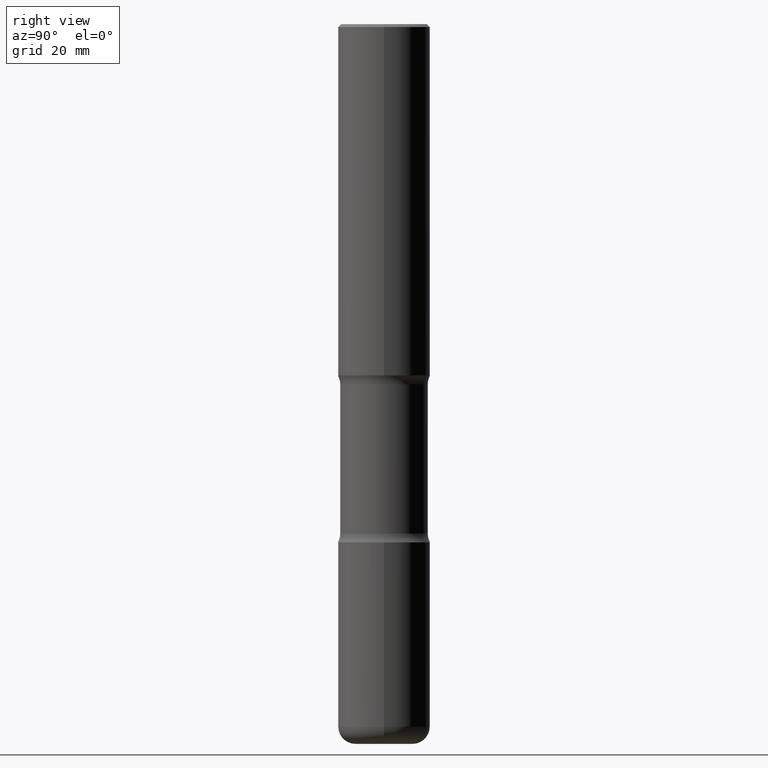
[diagram: clean part render]
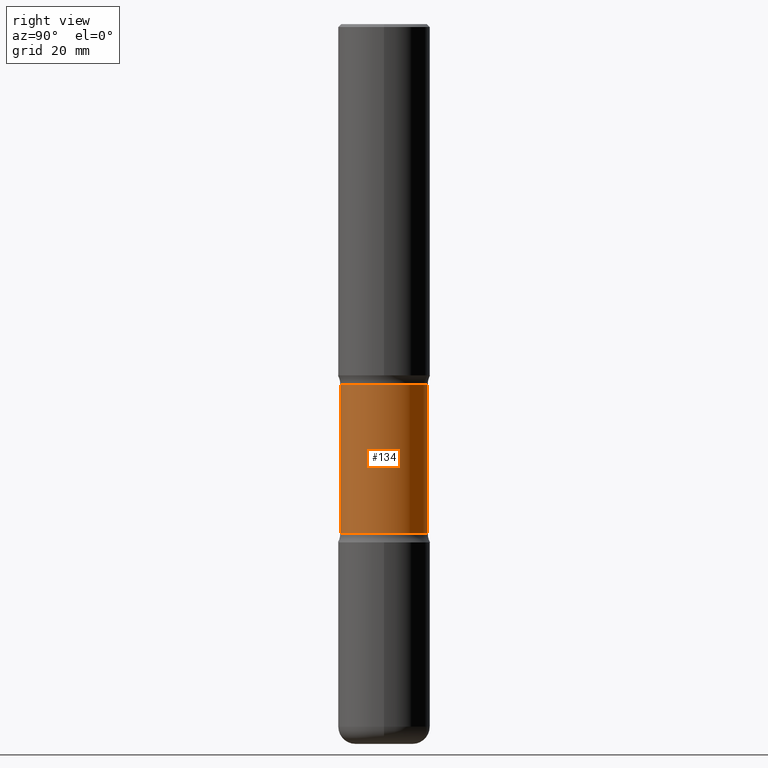
[diagram: same view with one face highlighted and labeled with its STEP entity id]
A machine part, right view. The second image highlights one B-rep face of the part: STEP entity #134.
In plain terms, the highlighted cylindrical surface (partial cylindrical patch) has radius 7.5997 mm, axis along (0, -0, -1).
Its self-contained STEP definition (entity closure, byte-faithful):
#13 = ORIENTED_EDGE ( 'NONE', *, *, #358, .T. ) ;
#16 = CARTESIAN_POINT ( 'NONE',  ( 8.512269027981096619E-29, -1.216533539121887276E-14, -3.482559259964996379 ) ) ;
#39 = CYLINDRICAL_SURFACE ( 'NONE', #478, 0.2992000000000000215 ) ;
#42 = DIRECTION ( 'NONE',  ( 2.514961011121466661E-29, -3.391964546123647133E-15, -1.000000000000000000 ) ) ;
#63 = EDGE_CURVE ( 'NONE', #417, #336, #368, .T. ) ;
#68 = VERTEX_POINT ( 'NONE', #276 ) ;
#88 = DIRECTION ( 'NONE',  ( 2.514961011121466661E-29, -3.391964546123646738E-15, -1.000000000000000000 ) ) ;
#90 = CIRCLE ( 'NONE', #203, 0.2992000000000000215 ) ;
#134 = ADVANCED_FACE ( 'NONE', ( #284 ), #39, .T. ) ;
#162 = ORIENTED_EDGE ( 'NONE', *, *, #305, .T. ) ;
#173 = EDGE_LOOP ( 'NONE', ( #13, #162, #503, #420 ) ) ;
#175 = CARTESIAN_POINT ( 'NONE',  ( 5.946459227533120264E-29, -8.704790342317601483E-15, -2.462340740035005471 ) ) ;
#179 = CARTESIAN_POINT ( 'NONE',  ( -2.052661000933121010E-15, -0.2992000000000170634, -4.921299999999999564 ) ) ;
#201 = VECTOR ( 'NONE', #362, 39.37007874015748143 ) ;
#203 = AXIS2_PLACEMENT_3D ( 'NONE', #16, #229, #495 ) ;
#229 = DIRECTION ( 'NONE',  ( 2.514961011121466661E-29, -3.391964546123646738E-15, -1.000000000000000000 ) ) ;
#276 = CARTESIAN_POINT ( 'NONE',  ( -2.106687422665607929E-15, -0.2992000000000121784, -3.482559259964995491 ) ) ;
#284 = FACE_OUTER_BOUND ( 'NONE', #173, .T. ) ;
#303 = AXIS2_PLACEMENT_3D ( 'NONE', #175, #88, #400 ) ;
#305 = EDGE_CURVE ( 'NONE', #445, #68, #437, .T. ) ;
#327 = CARTESIAN_POINT ( 'NONE',  ( -2.106687422665635539E-15, -0.2992000000000087367, -2.462340740035004139 ) ) ;
#336 = VERTEX_POINT ( 'NONE', #355 ) ;
#355 = CARTESIAN_POINT ( 'NONE',  ( 2.089302433163816004E-15, 0.2991999999999878646, -3.482559259964997711 ) ) ;
#358 = EDGE_CURVE ( 'NONE', #417, #445, #480, .T. ) ;
#362 = DIRECTION ( 'NONE',  ( 2.514961011121466661E-29, -3.391964546123647133E-15, -1.000000000000000000 ) ) ;
#368 = LINE ( 'NONE', #452, #201 ) ;
#370 = CARTESIAN_POINT ( 'NONE',  ( 2.089302433163790366E-15, 0.2991999999999913062, -2.462340740035006359 ) ) ;
#400 = DIRECTION ( 'NONE',  ( 6.982962677686265922E-15, 1.000000000000000000, -3.652203200085913145E-15 ) ) ;
#417 = VERTEX_POINT ( 'NONE', #370 ) ;
#419 = CARTESIAN_POINT ( 'NONE',  ( 1.213064589428117588E-28, -1.704549297248130466E-14, -4.921300000000000452 ) ) ;
#420 = ORIENTED_EDGE ( 'NONE', *, *, #63, .F. ) ;
#437 = LINE ( 'NONE', #179, #531 ) ;
#445 = VERTEX_POINT ( 'NONE', #327 ) ;
#452 = CARTESIAN_POINT ( 'NONE',  ( 2.089302433163852292E-15, 0.2991999999999829796, -4.921300000000002228 ) ) ;
#460 = DIRECTION ( 'NONE',  ( 2.514961011121466661E-29, -3.391964546123646738E-15, -1.000000000000000000 ) ) ;
#477 = EDGE_CURVE ( 'NONE', #336, #68, #90, .T. ) ;
#478 = AXIS2_PLACEMENT_3D ( 'NONE', #419, #460, #554 ) ;
#480 = CIRCLE ( 'NONE', #303, 0.2992000000000000215 ) ;
#495 = DIRECTION ( 'NONE',  ( 6.982962677686265922E-15, 1.000000000000000000, -3.652203200085913145E-15 ) ) ;
#503 = ORIENTED_EDGE ( 'NONE', *, *, #477, .F. ) ;
#531 = VECTOR ( 'NONE', #42, 39.37007874015748143 ) ;
#554 = DIRECTION ( 'NONE',  ( 6.982962677686265922E-15, 1.000000000000000000, -3.652203200085913145E-15 ) ) ;